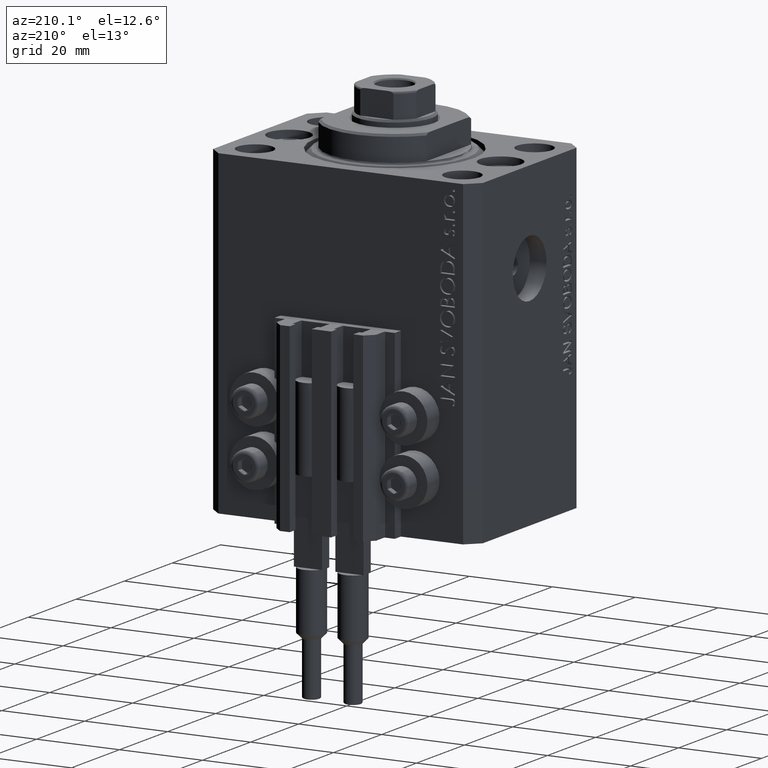
[diagram: clean part render]
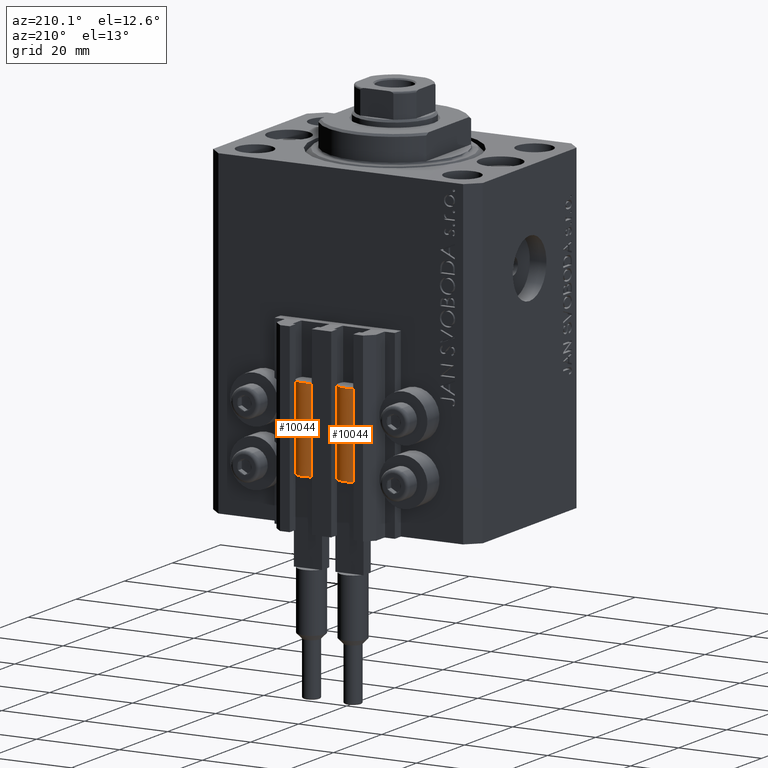
[diagram: same view with one multi-face feature highlighted, each face labeled with its STEP entity id]
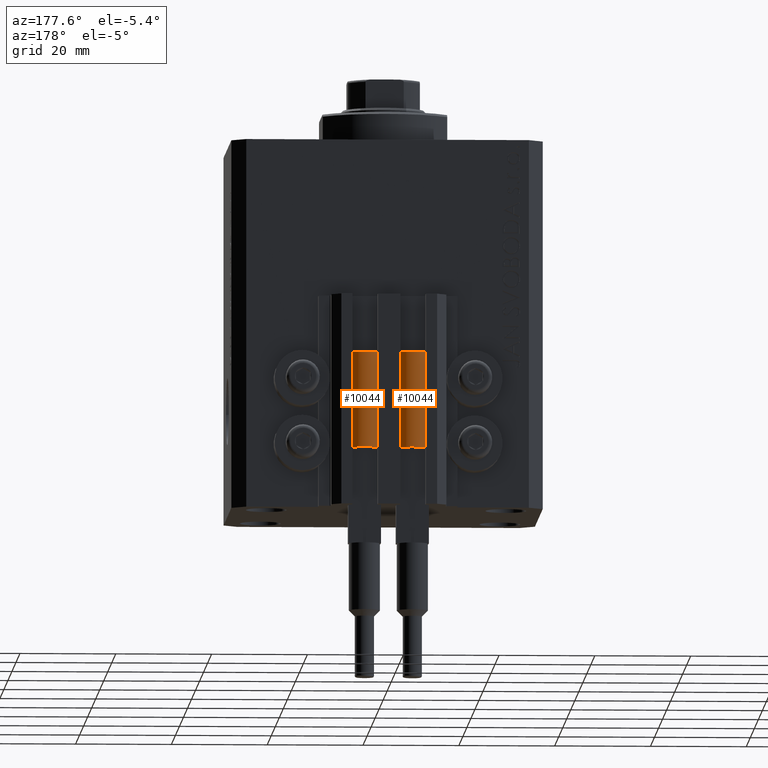
[diagram: same view with one multi-face feature highlighted, each face labeled with its STEP entity id]
A machine part, auxiliary view. The highlighted faces form ONE feature: a constant-radius fillet chain: 2 tangent blend faces with common blend radius 3.4 mm. The faces share edges in the B-rep.
A second angle (auxiliary view) of the same feature is appended — it is thin or edge-on in the first view.
Their STEP definitions:
[1] entity #10044 (Cylinder):
#71 = CIRCLE ( 'NONE', #5610, 3.400000000000000355 ) ;
#476 = CARTESIAN_POINT ( 'NONE',  ( 3.400000000000000355, 0.000000000000000000, 20.00000000000000000 ) ) ;
#1417 = CARTESIAN_POINT ( 'NONE',  ( 0.000000000000000000, 0.000000000000000000, 0.000000000000000000 ) ) ;
#1618 = AXIS2_PLACEMENT_3D ( 'NONE', #28155, #32020, #1934 ) ;
#1826 = VERTEX_POINT ( 'NONE', #476 ) ;
#1925 = AXIS2_PLACEMENT_3D ( 'NONE', #31286, #9925, #31766 ) ;
#1934 = DIRECTION ( 'NONE',  ( 1.000000000000000000, 0.000000000000000000, 0.000000000000000000 ) ) ;
#3842 = VERTEX_POINT ( 'NONE', #23993 ) ;
#5610 = AXIS2_PLACEMENT_3D ( 'NONE', #18498, #47634, #28957 ) ;
#5889 = DIRECTION ( 'NONE',  ( 0.000000000000000000, 0.000000000000000000, 1.000000000000000000 ) ) ;
#6454 = CARTESIAN_POINT ( 'NONE',  ( 3.400000000000000355, 4.163799117101001052E-16, 0.000000000000000000 ) ) ;
#9107 = CIRCLE ( 'NONE', #16878, 3.400000000000000355 ) ;
#9925 = DIRECTION ( 'NONE',  ( -0.000000000000000000, -0.000000000000000000, -1.000000000000000000 ) ) ;
#10044 = ADVANCED_FACE ( 'NONE', ( #16259 ), #35181, .T. ) ;
#10190 = VECTOR ( 'NONE', #34086, 1000.000000000000000 ) ;
#11540 = ORIENTED_EDGE ( 'NONE', *, *, #23654, .F. ) ;
#14926 = LINE ( 'NONE', #37018, #10190 ) ;
#15600 = ORIENTED_EDGE ( 'NONE', *, *, #32791, .T. ) ;
#16259 = FACE_OUTER_BOUND ( 'NONE', #44848, .T. ) ;
#16878 = AXIS2_PLACEMENT_3D ( 'NONE', #1417, #27157, #40992 ) ;
#18498 = CARTESIAN_POINT ( 'NONE',  ( 0.000000000000000000, 0.000000000000000000, 20.00000000000000000 ) ) ;
#20859 = EDGE_CURVE ( 'NONE', #23563, #35024, #9107, .T. ) ;
#23364 = CARTESIAN_POINT ( 'NONE',  ( -3.400000000000000355, 0.000000000000000000, 20.00000000000000000 ) ) ;
#23563 = VERTEX_POINT ( 'NONE', #41256 ) ;
#23654 = EDGE_CURVE ( 'NONE', #35616, #1826, #28764, .T. ) ;
#23993 = CARTESIAN_POINT ( 'NONE',  ( -3.399999999999999467, -4.915049848600952119E-16, 20.00000000000000000 ) ) ;
#26497 = AXIS2_PLACEMENT_3D ( 'NONE', #38901, #5889, #46189 ) ;
#27157 = DIRECTION ( 'NONE',  ( 0.000000000000000000, 0.000000000000000000, 1.000000000000000000 ) ) ;
#28155 = CARTESIAN_POINT ( 'NONE',  ( 0.000000000000000000, 0.000000000000000000, 20.00000000000000000 ) ) ;
#28764 = CIRCLE ( 'NONE', #1618, 3.400000000000000355 ) ;
#28957 = DIRECTION ( 'NONE',  ( 1.000000000000000000, 0.000000000000000000, 0.000000000000000000 ) ) ;
#31286 = CARTESIAN_POINT ( 'NONE',  ( 0.000000000000000000, 0.000000000000000000, 20.00000000000000000 ) ) ;
#31765 = VERTEX_POINT ( 'NONE', #47548 ) ;
#31766 = DIRECTION ( 'NONE',  ( -1.000000000000000000, 0.000000000000000000, 0.000000000000000000 ) ) ;
#32020 = DIRECTION ( 'NONE',  ( 0.000000000000000000, 0.000000000000000000, 1.000000000000000000 ) ) ;
#32791 = EDGE_CURVE ( 'NONE', #3842, #23563, #42763, .T. ) ;
#34086 = DIRECTION ( 'NONE',  ( -0.000000000000000000, -0.000000000000000000, -1.000000000000000000 ) ) ;
#35024 = VERTEX_POINT ( 'NONE', #6454 ) ;
#35072 = CIRCLE ( 'NONE', #26497, 3.400000000000000355 ) ;
#35151 = EDGE_CURVE ( 'NONE', #1826, #35024, #14926, .T. ) ;
#35181 = CYLINDRICAL_SURFACE ( 'NONE', #1925, 3.400000000000000355 ) ;
#35616 = VERTEX_POINT ( 'NONE', #39591 ) ;
#35665 = ORIENTED_EDGE ( 'NONE', *, *, #35151, .F. ) ;
#35667 = ORIENTED_EDGE ( 'NONE', *, *, #37490, .F. ) ;
#37018 = CARTESIAN_POINT ( 'NONE',  ( 3.400000000000000355, 4.163799117101001052E-16, 20.00000000000000000 ) ) ;
#37490 = EDGE_CURVE ( 'NONE', #3842, #31765, #35072, .T. ) ;
#38008 = VECTOR ( 'NONE', #42287, 1000.000000000000000 ) ;
#38497 = EDGE_CURVE ( 'NONE', #31765, #35616, #71, .T. ) ;
#38901 = CARTESIAN_POINT ( 'NONE',  ( 0.000000000000000000, 0.000000000000000000, 20.00000000000000000 ) ) ;
#39591 = CARTESIAN_POINT ( 'NONE',  ( 3.051229260478471428, -1.500000000000000000, 20.00000000000000000 ) ) ;
#39959 = ORIENTED_EDGE ( 'NONE', *, *, #20859, .T. ) ;
#40992 = DIRECTION ( 'NONE',  ( 1.000000000000000000, 0.000000000000000000, 0.000000000000000000 ) ) ;
#41256 = CARTESIAN_POINT ( 'NONE',  ( -3.400000000000000355, 0.000000000000000000, 0.000000000000000000 ) ) ;
#42287 = DIRECTION ( 'NONE',  ( -0.000000000000000000, -0.000000000000000000, -1.000000000000000000 ) ) ;
#42763 = LINE ( 'NONE', #23364, #38008 ) ;
#44384 = ORIENTED_EDGE ( 'NONE', *, *, #38497, .F. ) ;
#44848 = EDGE_LOOP ( 'NONE', ( #35665, #11540, #44384, #35667, #15600, #39959 ) ) ;
#46189 = DIRECTION ( 'NONE',  ( 1.000000000000000000, 0.000000000000000000, 0.000000000000000000 ) ) ;
#47548 = CARTESIAN_POINT ( 'NONE',  ( -3.051229260478471428, -1.500000000000000000, 20.00000000000000000 ) ) ;
#47634 = DIRECTION ( 'NONE',  ( 0.000000000000000000, 0.000000000000000000, 1.000000000000000000 ) ) ;
[2] entity #10044 (Cylinder):
#71 = CIRCLE ( 'NONE', #5610, 3.400000000000000355 ) ;
#476 = CARTESIAN_POINT ( 'NONE',  ( 3.400000000000000355, 0.000000000000000000, 20.00000000000000000 ) ) ;
#1417 = CARTESIAN_POINT ( 'NONE',  ( 0.000000000000000000, 0.000000000000000000, 0.000000000000000000 ) ) ;
#1618 = AXIS2_PLACEMENT_3D ( 'NONE', #28155, #32020, #1934 ) ;
#1826 = VERTEX_POINT ( 'NONE', #476 ) ;
#1925 = AXIS2_PLACEMENT_3D ( 'NONE', #31286, #9925, #31766 ) ;
#1934 = DIRECTION ( 'NONE',  ( 1.000000000000000000, 0.000000000000000000, 0.000000000000000000 ) ) ;
#3842 = VERTEX_POINT ( 'NONE', #23993 ) ;
#5610 = AXIS2_PLACEMENT_3D ( 'NONE', #18498, #47634, #28957 ) ;
#5889 = DIRECTION ( 'NONE',  ( 0.000000000000000000, 0.000000000000000000, 1.000000000000000000 ) ) ;
#6454 = CARTESIAN_POINT ( 'NONE',  ( 3.400000000000000355, 4.163799117101001052E-16, 0.000000000000000000 ) ) ;
#9107 = CIRCLE ( 'NONE', #16878, 3.400000000000000355 ) ;
#9925 = DIRECTION ( 'NONE',  ( -0.000000000000000000, -0.000000000000000000, -1.000000000000000000 ) ) ;
#10044 = ADVANCED_FACE ( 'NONE', ( #16259 ), #35181, .T. ) ;
#10190 = VECTOR ( 'NONE', #34086, 1000.000000000000000 ) ;
#11540 = ORIENTED_EDGE ( 'NONE', *, *, #23654, .F. ) ;
#14926 = LINE ( 'NONE', #37018, #10190 ) ;
#15600 = ORIENTED_EDGE ( 'NONE', *, *, #32791, .T. ) ;
#16259 = FACE_OUTER_BOUND ( 'NONE', #44848, .T. ) ;
#16878 = AXIS2_PLACEMENT_3D ( 'NONE', #1417, #27157, #40992 ) ;
#18498 = CARTESIAN_POINT ( 'NONE',  ( 0.000000000000000000, 0.000000000000000000, 20.00000000000000000 ) ) ;
#20859 = EDGE_CURVE ( 'NONE', #23563, #35024, #9107, .T. ) ;
#23364 = CARTESIAN_POINT ( 'NONE',  ( -3.400000000000000355, 0.000000000000000000, 20.00000000000000000 ) ) ;
#23563 = VERTEX_POINT ( 'NONE', #41256 ) ;
#23654 = EDGE_CURVE ( 'NONE', #35616, #1826, #28764, .T. ) ;
#23993 = CARTESIAN_POINT ( 'NONE',  ( -3.399999999999999467, -4.915049848600952119E-16, 20.00000000000000000 ) ) ;
#26497 = AXIS2_PLACEMENT_3D ( 'NONE', #38901, #5889, #46189 ) ;
#27157 = DIRECTION ( 'NONE',  ( 0.000000000000000000, 0.000000000000000000, 1.000000000000000000 ) ) ;
#28155 = CARTESIAN_POINT ( 'NONE',  ( 0.000000000000000000, 0.000000000000000000, 20.00000000000000000 ) ) ;
#28764 = CIRCLE ( 'NONE', #1618, 3.400000000000000355 ) ;
#28957 = DIRECTION ( 'NONE',  ( 1.000000000000000000, 0.000000000000000000, 0.000000000000000000 ) ) ;
#31286 = CARTESIAN_POINT ( 'NONE',  ( 0.000000000000000000, 0.000000000000000000, 20.00000000000000000 ) ) ;
#31765 = VERTEX_POINT ( 'NONE', #47548 ) ;
#31766 = DIRECTION ( 'NONE',  ( -1.000000000000000000, 0.000000000000000000, 0.000000000000000000 ) ) ;
#32020 = DIRECTION ( 'NONE',  ( 0.000000000000000000, 0.000000000000000000, 1.000000000000000000 ) ) ;
#32791 = EDGE_CURVE ( 'NONE', #3842, #23563, #42763, .T. ) ;
#34086 = DIRECTION ( 'NONE',  ( -0.000000000000000000, -0.000000000000000000, -1.000000000000000000 ) ) ;
#35024 = VERTEX_POINT ( 'NONE', #6454 ) ;
#35072 = CIRCLE ( 'NONE', #26497, 3.400000000000000355 ) ;
#35151 = EDGE_CURVE ( 'NONE', #1826, #35024, #14926, .T. ) ;
#35181 = CYLINDRICAL_SURFACE ( 'NONE', #1925, 3.400000000000000355 ) ;
#35616 = VERTEX_POINT ( 'NONE', #39591 ) ;
#35665 = ORIENTED_EDGE ( 'NONE', *, *, #35151, .F. ) ;
#35667 = ORIENTED_EDGE ( 'NONE', *, *, #37490, .F. ) ;
#37018 = CARTESIAN_POINT ( 'NONE',  ( 3.400000000000000355, 4.163799117101001052E-16, 20.00000000000000000 ) ) ;
#37490 = EDGE_CURVE ( 'NONE', #3842, #31765, #35072, .T. ) ;
#38008 = VECTOR ( 'NONE', #42287, 1000.000000000000000 ) ;
#38497 = EDGE_CURVE ( 'NONE', #31765, #35616, #71, .T. ) ;
#38901 = CARTESIAN_POINT ( 'NONE',  ( 0.000000000000000000, 0.000000000000000000, 20.00000000000000000 ) ) ;
#39591 = CARTESIAN_POINT ( 'NONE',  ( 3.051229260478471428, -1.500000000000000000, 20.00000000000000000 ) ) ;
#39959 = ORIENTED_EDGE ( 'NONE', *, *, #20859, .T. ) ;
#40992 = DIRECTION ( 'NONE',  ( 1.000000000000000000, 0.000000000000000000, 0.000000000000000000 ) ) ;
#41256 = CARTESIAN_POINT ( 'NONE',  ( -3.400000000000000355, 0.000000000000000000, 0.000000000000000000 ) ) ;
#42287 = DIRECTION ( 'NONE',  ( -0.000000000000000000, -0.000000000000000000, -1.000000000000000000 ) ) ;
#42763 = LINE ( 'NONE', #23364, #38008 ) ;
#44384 = ORIENTED_EDGE ( 'NONE', *, *, #38497, .F. ) ;
#44848 = EDGE_LOOP ( 'NONE', ( #35665, #11540, #44384, #35667, #15600, #39959 ) ) ;
#46189 = DIRECTION ( 'NONE',  ( 1.000000000000000000, 0.000000000000000000, 0.000000000000000000 ) ) ;
#47548 = CARTESIAN_POINT ( 'NONE',  ( -3.051229260478471428, -1.500000000000000000, 20.00000000000000000 ) ) ;
#47634 = DIRECTION ( 'NONE',  ( 0.000000000000000000, 0.000000000000000000, 1.000000000000000000 ) ) ;